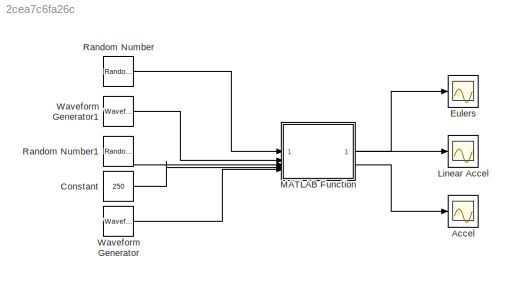
MODEL slx_2cea7c6fa26c
KIND model
CONFIG AbsTol = auto
CONFIG EnableMultiTasking = on
CONFIG FixedStep = 0.1
CONFIG MaxStep = auto
CONFIG MinStep = auto
CONFIG RelTol = 1e-3
CONFIG SampleTimeConstraint = Unconstrained
CONFIG SolverName = FixedStepDiscrete
CONFIG StartTime = 0.0
CONFIG StopTime = inf
BLOCK [Scope] Accel
  Floating = off
  NumInputPorts = 1
  ScopeSpecificationString = Simulink.scopes.TimeScopeBlockCfg('CurrentConfiguration', extmgr.ConfigurationSet(extmgr.Configuration('Core','General UI',true),extmgr.Configuration('Core','Source UI',true),extmgr.Configuration('Sources','WiredSimulink',true,'DataLoggingVariableName','ScopeData2'),extmgr.Configuration('Visuals','Time Domain',true,'SerializedDisplays',{struct('MinYLimReal','-28.99703','MaxYLimReal','280.88123','Y...<+1532ch>
BLOCK [Constant] Constant
  Value = 250
BLOCK [Scope] Eulers
  Floating = off
  NumInputPorts = 1
  ScopeSpecificationString = Simulink.scopes.TimeScopeBlockCfg('CurrentConfiguration', extmgr.ConfigurationSet(extmgr.Configuration('Core','General UI',true),extmgr.Configuration('Core','Source UI',true),extmgr.Configuration('Sources','WiredSimulink',true),extmgr.Configuration('Visuals','Time Domain',true,'SerializedDisplays',{struct('MinYLimReal','-1.24999','MaxYLimReal','1.25','YLabelReal','','MinYLimMag','0.00000','MaxYLim...<+1542ch>
BLOCK [Scope] Linear Accel
  Floating = off
  NumInputPorts = 1
  ScopeSpecificationString = Simulink.scopes.TimeScopeBlockCfg('CurrentConfiguration', extmgr.ConfigurationSet(extmgr.Configuration('Core','General UI',true),extmgr.Configuration('Core','Source UI',true),extmgr.Configuration('Sources','WiredSimulink',true,'DataLoggingVariableName','ScopeData1'),extmgr.Configuration('Visuals','Time Domain',true,'SerializedDisplays',{struct('MinYLimReal','-14.56025','MaxYLimReal','4.9557','YLab...<+1512ch>
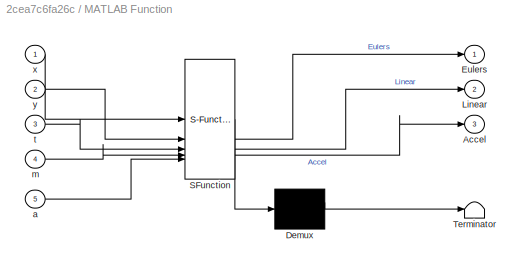
BLOCK [SubSystem] MATLAB Function
  ErrorFcn = Stateflow.Translate.translate
  PermitHierarchicalResolution = ExplicitOnly
  SFBlockType = MATLAB Function
  TreatAsAtomicUnit = on
BLOCK [Demux] MATLAB Function/ Demux 
  Outputs = 1
BLOCK [S-Function] MATLAB Function/ SFunction 
  EnableBusSupport = on
  FunctionName = sf_sfun
  PortCounts = [5 4]
  SFcnIsStateOwnerBlock = off
  SFunctionDeploymentMode = off
  Tag = Stateflow S-Function 2
BLOCK [Terminator] MATLAB Function/ Terminator 
BLOCK [Outport] MATLAB Function/Accel
  Port = 3
BLOCK [Outport] MATLAB Function/Eulers
BLOCK [Outport] MATLAB Function/Linear
  Port = 2
BLOCK [Inport] MATLAB Function/a
  Port = 5
BLOCK [Inport] MATLAB Function/m
  Port = 4
BLOCK [Inport] MATLAB Function/t
  Port = 3
BLOCK [Inport] MATLAB Function/x
BLOCK [Inport] MATLAB Function/y
  Port = 2
BLOCK [RandomNumber] Random Number
  SampleTime = 0.1
  Variance = 5
BLOCK [RandomNumber] Random Number1
  SampleTime = 0.1
  Variance = 5
BLOCK [Reference] Waveform Generator  REF=simulink/Sources/Waveform
Generator
  SourceBlock = simulink/Sources/Waveform\nGenerator
  SourceType = WaveformGenerator
BLOCK [Reference] Waveform Generator1  REF=simulink/Sources/Waveform
Generator
  SourceBlock = simulink/Sources/Waveform\nGenerator
  SourceType = WaveformGenerator
LINE Constant:1 -> MATLAB Function:4
LINE MATLAB Function:1 -> Eulers:1
LINE MATLAB Function:2 -> Linear Accel:1
LINE MATLAB Function:3 -> Accel:1
LINE Random Number1:1 -> MATLAB Function:3
LINE Random Number:1 -> MATLAB Function:1
LINE Waveform Generator1:1 -> MATLAB Function:2
LINE Waveform Generator:1 -> MATLAB Function:5
CHART MATLAB Function states=1 transitions=1
  STATE_LABEL 'eML_blk_kernel()'
  STATE_LABEL 'SCRIPT:\nfunction [Eulers, Linear, Accel] = fcn1(x, y, t, m ,a)\nEulers = cos(x) + 1i*sin(x); %% Eulers formula \nLinear = (y/t); %% Linear Acceleration formula \nAccel = m*a; %% Accelerometer formula\n%% each formula takes random variables and showcases the expected outputs for each function on the board\n\n'
CHART  states=0 transitions=0
